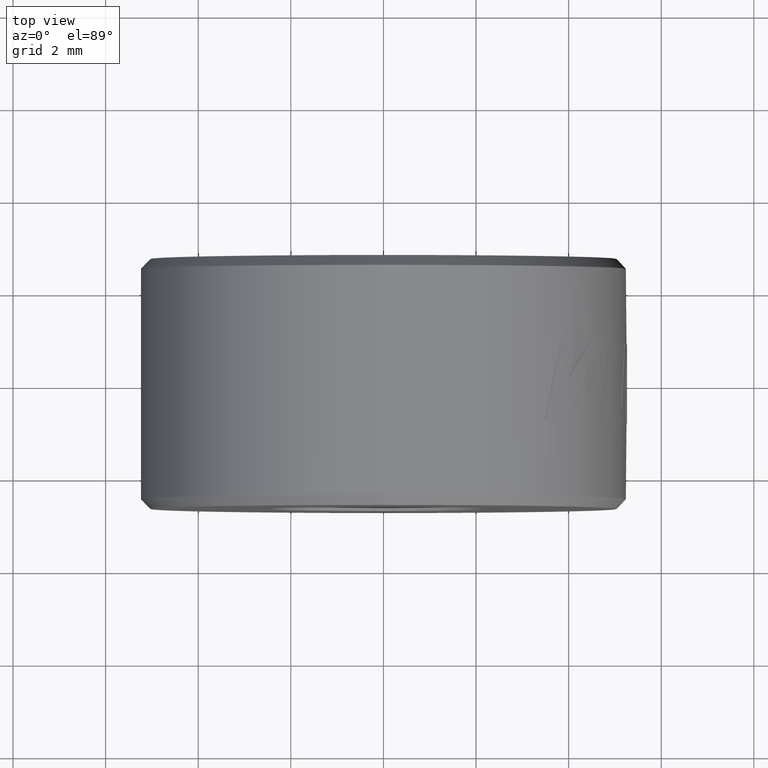
[diagram: clean part render]
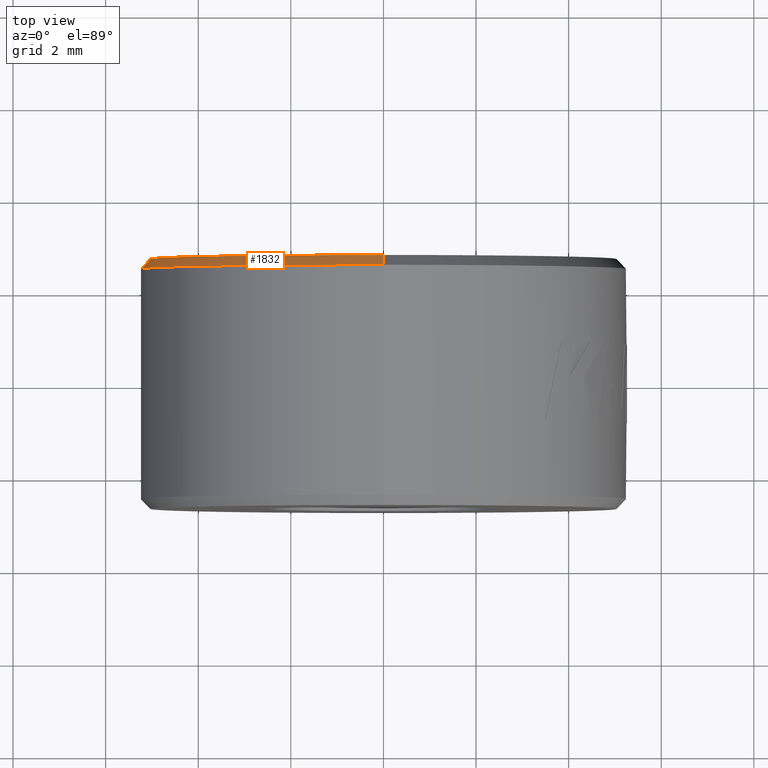
[diagram: same view with one face highlighted and labeled with its STEP entity id]
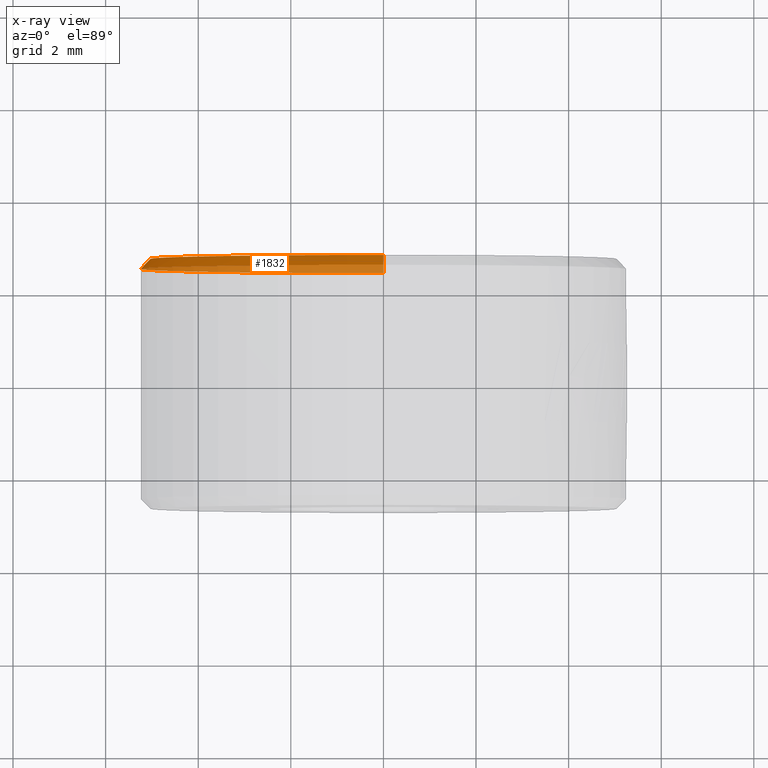
[diagram: x-ray of the same camera — body ghosted, the highlighted face saturated]
A machine part, top view. The second image highlights one B-rep face of the part: STEP entity #1832.
The next image is the same camera in x-ray: the body ghosted, the highlighted face saturated — about 41% of this face is hidden behind the body in this view.
In plain terms, the highlighted conical surface has half-angle 45 deg.
Its self-contained STEP definition (entity closure, byte-faithful):
#177 = DIRECTION ( 'NONE',  ( 0.000000000000000000, -1.000000000000000000, 0.000000000000000000 ) ) ;
#197 = LINE ( 'NONE', #1731, #604 ) ;
#205 = CARTESIAN_POINT ( 'NONE',  ( 0.000000000000000000, 2.483700000000002017, 0.000000000000000000 ) ) ;
#318 = EDGE_CURVE ( 'NONE', #1712, #1599, #357, .T. ) ;
#357 = CIRCLE ( 'NONE', #1675, 5.250000000000000000 ) ;
#393 = DIRECTION ( 'NONE',  ( 0.000000000000000000, 0.000000000000000000, 1.000000000000000000 ) ) ;
#485 = LINE ( 'NONE', #1465, #2056 ) ;
#499 = DIRECTION ( 'NONE',  ( 0.000000000000000000, -0.7071067811865489050, -0.7071067811865462405 ) ) ;
#563 = DIRECTION ( 'NONE',  ( 8.659560562354915602E-17, -0.7071067811865489050, 0.7071067811865462405 ) ) ;
#574 = CARTESIAN_POINT ( 'NONE',  ( 6.296950144195819485E-16, 2.700000000000000178, 5.033700000000003172 ) ) ;
#604 = VECTOR ( 'NONE', #563, 1000.000000000000000 ) ;
#638 = EDGE_LOOP ( 'NONE', ( #2139, #1266, #1070, #1372 ) ) ;
#669 = EDGE_CURVE ( 'NONE', #2242, #1345, #1474, .T. ) ;
#823 = CARTESIAN_POINT ( 'NONE',  ( 6.429395695523603167E-16, 2.483700000000002017, -5.250000000000000000 ) ) ;
#944 = DIRECTION ( 'NONE',  ( 0.000000000000000000, 0.000000000000000000, 1.000000000000000000 ) ) ;
#1049 = CARTESIAN_POINT ( 'NONE',  ( 0.000000000000000000, 2.483700000000002017, 5.250000000000000000 ) ) ;
#1070 = ORIENTED_EDGE ( 'NONE', *, *, #2096, .T. ) ;
#1153 = AXIS2_PLACEMENT_3D ( 'NONE', #2270, #177, #2093 ) ;
#1266 = ORIENTED_EDGE ( 'NONE', *, *, #669, .F. ) ;
#1345 = VERTEX_POINT ( 'NONE', #574 ) ;
#1372 = ORIENTED_EDGE ( 'NONE', *, *, #318, .F. ) ;
#1465 = CARTESIAN_POINT ( 'NONE',  ( 0.000000000000000000, 2.700000000000000178, -5.033700000000003172 ) ) ;
#1474 = CIRCLE ( 'NONE', #2098, 5.033700000000003172 ) ;
#1599 = VERTEX_POINT ( 'NONE', #823 ) ;
#1675 = AXIS2_PLACEMENT_3D ( 'NONE', #205, #2081, #944 ) ;
#1712 = VERTEX_POINT ( 'NONE', #1049 ) ;
#1725 = CARTESIAN_POINT ( 'NONE',  ( 0.000000000000000000, 2.700000000000000178, 0.000000000000000000 ) ) ;
#1731 = CARTESIAN_POINT ( 'NONE',  ( 6.164504592868034817E-16, 2.700000000000000178, 5.033700000000003172 ) ) ;
#1765 = EDGE_CURVE ( 'NONE', #1345, #1712, #197, .T. ) ;
#1832 = ADVANCED_FACE ( 'NONE', ( #1883 ), #2310, .T. ) ;
#1883 = FACE_OUTER_BOUND ( 'NONE', #638, .T. ) ;
#2056 = VECTOR ( 'NONE', #499, 1000.000000000000000 ) ;
#2081 = DIRECTION ( 'NONE',  ( 0.000000000000000000, -1.000000000000000000, 0.000000000000000000 ) ) ;
#2087 = CARTESIAN_POINT ( 'NONE',  ( 0.000000000000000000, 2.700000000000000178, -5.033700000000003172 ) ) ;
#2093 = DIRECTION ( 'NONE',  ( 0.000000000000000000, 0.000000000000000000, -1.000000000000000000 ) ) ;
#2096 = EDGE_CURVE ( 'NONE', #2242, #1599, #485, .T. ) ;
#2098 = AXIS2_PLACEMENT_3D ( 'NONE', #1725, #2111, #393 ) ;
#2111 = DIRECTION ( 'NONE',  ( 0.000000000000000000, 1.000000000000000000, 0.000000000000000000 ) ) ;
#2139 = ORIENTED_EDGE ( 'NONE', *, *, #1765, .F. ) ;
#2242 = VERTEX_POINT ( 'NONE', #2087 ) ;
#2270 = CARTESIAN_POINT ( 'NONE',  ( 0.000000000000000000, 2.700000000000000178, 0.000000000000000000 ) ) ;
#2310 = CONICAL_SURFACE ( 'NONE', #1153, 5.033700000000003172, 0.7853981633974463916 ) ;